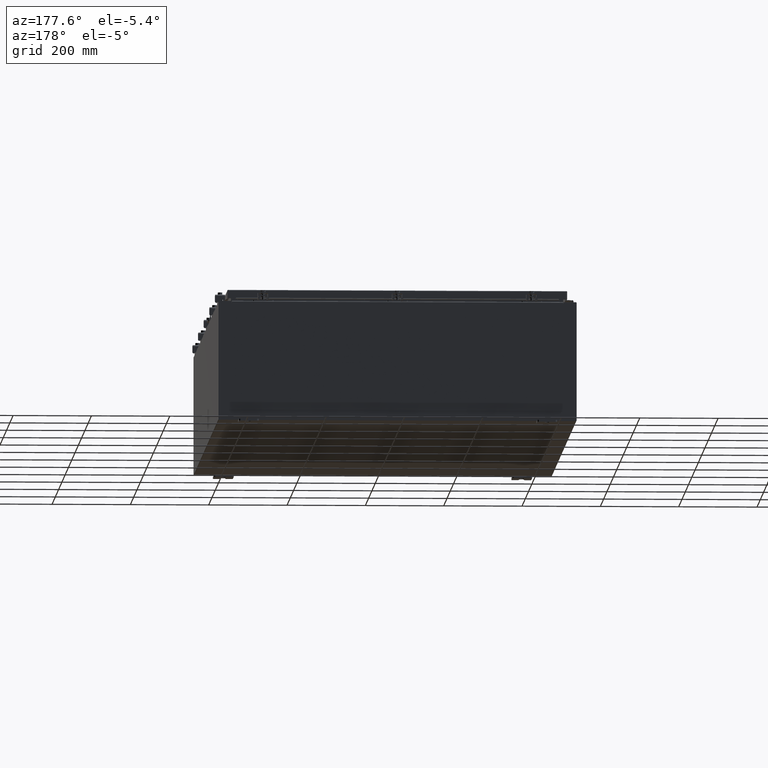
[diagram: clean part render]
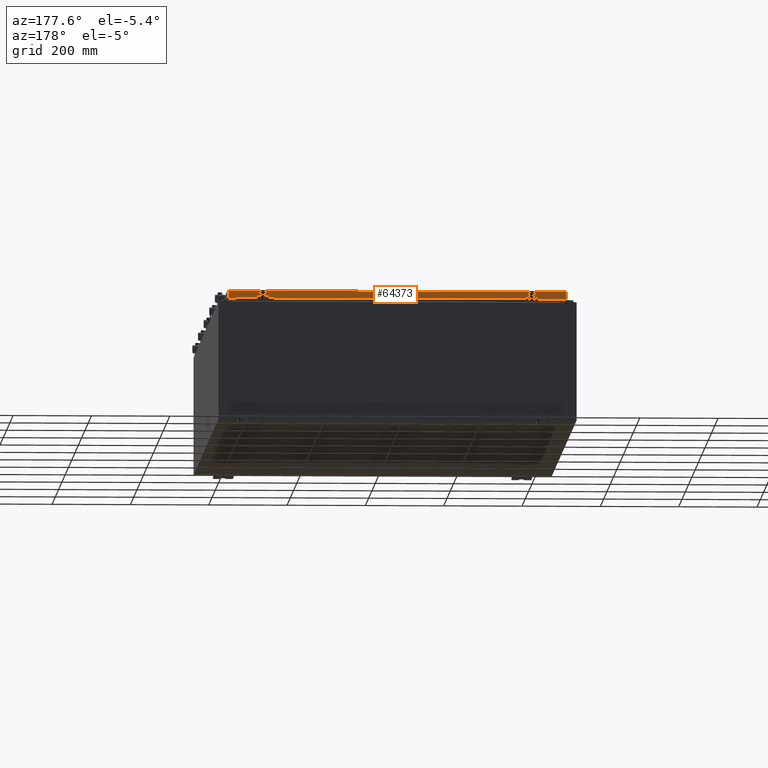
[diagram: same view with one face highlighted and labeled with its STEP entity id]
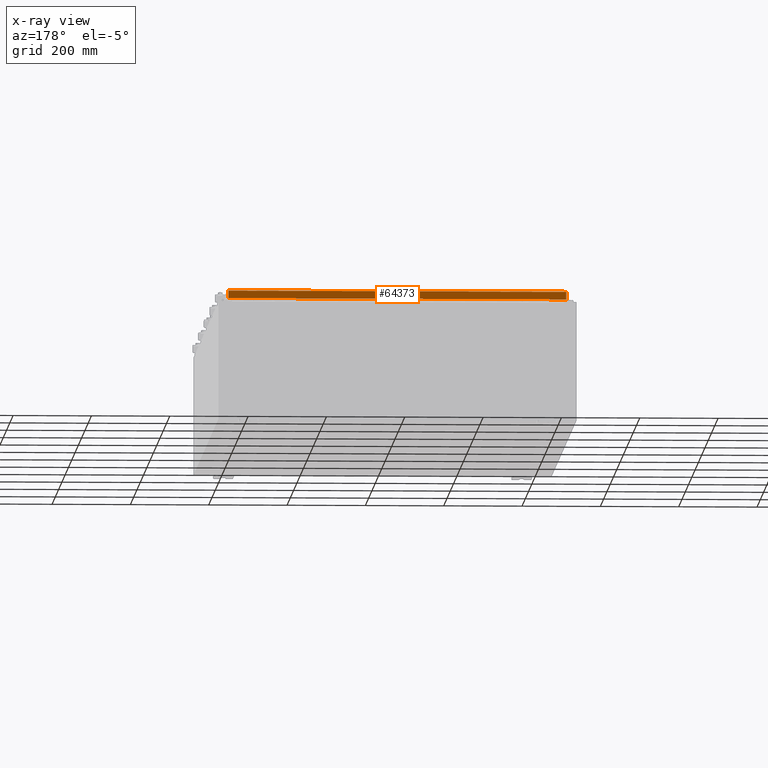
[diagram: x-ray of the same camera — body ghosted, the highlighted face saturated]
A machine part, auxiliary view. The second image highlights one B-rep face of the part: STEP entity #64373.
The next image is the same camera in x-ray: the body ghosted, the highlighted face saturated — about 0% of this face is hidden behind the body in this view.
In plain terms, the highlighted planar face has unit normal (0, -1, -0).
Its self-contained STEP definition (entity closure, byte-faithful):
#1083 = CARTESIAN_POINT ( 'NONE',  ( -16.98915786437626400, 29.09400000000000500, -0.8500000000000043100 ) ) ;
#2331 = AXIS2_PLACEMENT_3D ( 'NONE', #56995, #7341, #42223 ) ;
#2346 = PLANE ( 'NONE',  #2331 ) ;
#2603 = ORIENTED_EDGE ( 'NONE', *, *, #12269, .T. ) ;
#2685 = CARTESIAN_POINT ( 'NONE',  ( 16.98915786437627100, 29.09400000000000100, -0.08769999999999589200 ) ) ;
#2863 = CARTESIAN_POINT ( 'NONE',  ( 16.98915786437627100, 29.09400000000000100, 1.639108796198558000E-013 ) ) ;
#6532 = CARTESIAN_POINT ( 'NONE',  ( -17.07799999999999600, 29.09400000000000100, -0.08769999999999589200 ) ) ;
#7341 = DIRECTION ( 'NONE',  ( 6.989207801985676400E-031, -1.000000000000000000, -5.637761885544689500E-015 ) ) ;
#7880 = DIRECTION ( 'NONE',  ( 0.0000000000000000000, 5.637761885544689500E-015, -1.000000000000000000 ) ) ;
#10453 = LINE ( 'NONE', #6532, #35365 ) ;
#10600 = VECTOR ( 'NONE', #21182, 39.37007874015748100 ) ;
#11625 = ORIENTED_EDGE ( 'NONE', *, *, #18842, .F. ) ;
#12269 = EDGE_CURVE ( 'NONE', #15186, #41212, #27632, .T. ) ;
#15186 = VERTEX_POINT ( 'NONE', #2685 ) ;
#15998 = ORIENTED_EDGE ( 'NONE', *, *, #18969, .F. ) ;
#16709 = CARTESIAN_POINT ( 'NONE',  ( 16.23915786437627100, 29.09400000000000100, -0.8500000000000043100 ) ) ;
#18842 = EDGE_CURVE ( 'NONE', #54223, #48909, #57997, .T. ) ;
#18969 = EDGE_CURVE ( 'NONE', #15186, #19208, #10453, .T. ) ;
#19208 = VERTEX_POINT ( 'NONE', #38113 ) ;
#21182 = DIRECTION ( 'NONE',  ( 1.000000000000000000, -0.0000000000000000000, 1.239713195391617400E-016 ) ) ;
#22325 = EDGE_LOOP ( 'NONE', ( #15998, #2603, #35923, #11625, #31841, #42102 ) ) ;
#25333 = DIRECTION ( 'NONE',  ( 1.000000000000000000, -0.0000000000000000000, -0.0000000000000000000 ) ) ;
#26338 = EDGE_CURVE ( 'NONE', #19208, #38480, #45036, .T. ) ;
#26415 = DIRECTION ( 'NONE',  ( -1.000000000000000000, -6.989207801985677300E-031, -3.922586267643528000E-045 ) ) ;
#27632 = LINE ( 'NONE', #2863, #52502 ) ;
#31774 = VECTOR ( 'NONE', #41677, 39.37007874015748100 ) ;
#31841 = ORIENTED_EDGE ( 'NONE', *, *, #57510, .F. ) ;
#34559 = CARTESIAN_POINT ( 'NONE',  ( -17.07799999999999600, 29.09400000000000500, -0.8500000000000043100 ) ) ;
#35365 = VECTOR ( 'NONE', #26415, 39.37007874015748100 ) ;
#35865 = FACE_OUTER_BOUND ( 'NONE', #22325, .T. ) ;
#35923 = ORIENTED_EDGE ( 'NONE', *, *, #62882, .F. ) ;
#38113 = CARTESIAN_POINT ( 'NONE',  ( -16.98915786437626400, 29.09400000000000100, -0.08769999999999589200 ) ) ;
#38480 = VERTEX_POINT ( 'NONE', #1083 ) ;
#39197 = VECTOR ( 'NONE', #64371, 39.37007874015748100 ) ;
#41212 = VERTEX_POINT ( 'NONE', #54158 ) ;
#41677 = DIRECTION ( 'NONE',  ( -0.0000000000000000000, 5.637761885544689500E-015, -1.000000000000000000 ) ) ;
#42102 = ORIENTED_EDGE ( 'NONE', *, *, #26338, .F. ) ;
#42223 = DIRECTION ( 'NONE',  ( 0.0000000000000000000, 5.637761885544689500E-015, -1.000000000000000000 ) ) ;
#45036 = LINE ( 'NONE', #46689, #31774 ) ;
#46038 = CARTESIAN_POINT ( 'NONE',  ( -17.07799999999999600, 29.09400000000000500, -0.8500000000000043100 ) ) ;
#46689 = CARTESIAN_POINT ( 'NONE',  ( -16.98915786437626400, 29.09400000000000100, -0.07470000000000015500 ) ) ;
#48909 = VERTEX_POINT ( 'NONE', #16709 ) ;
#49908 = CARTESIAN_POINT ( 'NONE',  ( -16.23915786437625600, 29.09400000000000100, -0.8500000000000043100 ) ) ;
#52502 = VECTOR ( 'NONE', #7880, 39.37007874015748100 ) ;
#54158 = CARTESIAN_POINT ( 'NONE',  ( 16.98915786437627100, 29.09400000000000500, -0.8499999999999999800 ) ) ;
#54223 = VERTEX_POINT ( 'NONE', #49908 ) ;
#56441 = VECTOR ( 'NONE', #25333, 39.37007874015748100 ) ;
#56995 = CARTESIAN_POINT ( 'NONE',  ( 0.0000000000000000000, 29.09400000000000100, 1.639108796198558000E-013 ) ) ;
#57510 = EDGE_CURVE ( 'NONE', #38480, #54223, #61990, .T. ) ;
#57997 = LINE ( 'NONE', #60125, #56441 ) ;
#60125 = CARTESIAN_POINT ( 'NONE',  ( -16.23915786437626400, 29.09400000000000100, -0.8500000000000043100 ) ) ;
#61990 = LINE ( 'NONE', #46038, #10600 ) ;
#62882 = EDGE_CURVE ( 'NONE', #48909, #41212, #64079, .T. ) ;
#64079 = LINE ( 'NONE', #34559, #39197 ) ;
#64371 = DIRECTION ( 'NONE',  ( 1.000000000000000000, -0.0000000000000000000, 1.239713195391617400E-016 ) ) ;
#64373 = ADVANCED_FACE ( 'NONE', ( #35865 ), #2346, .F. ) ;